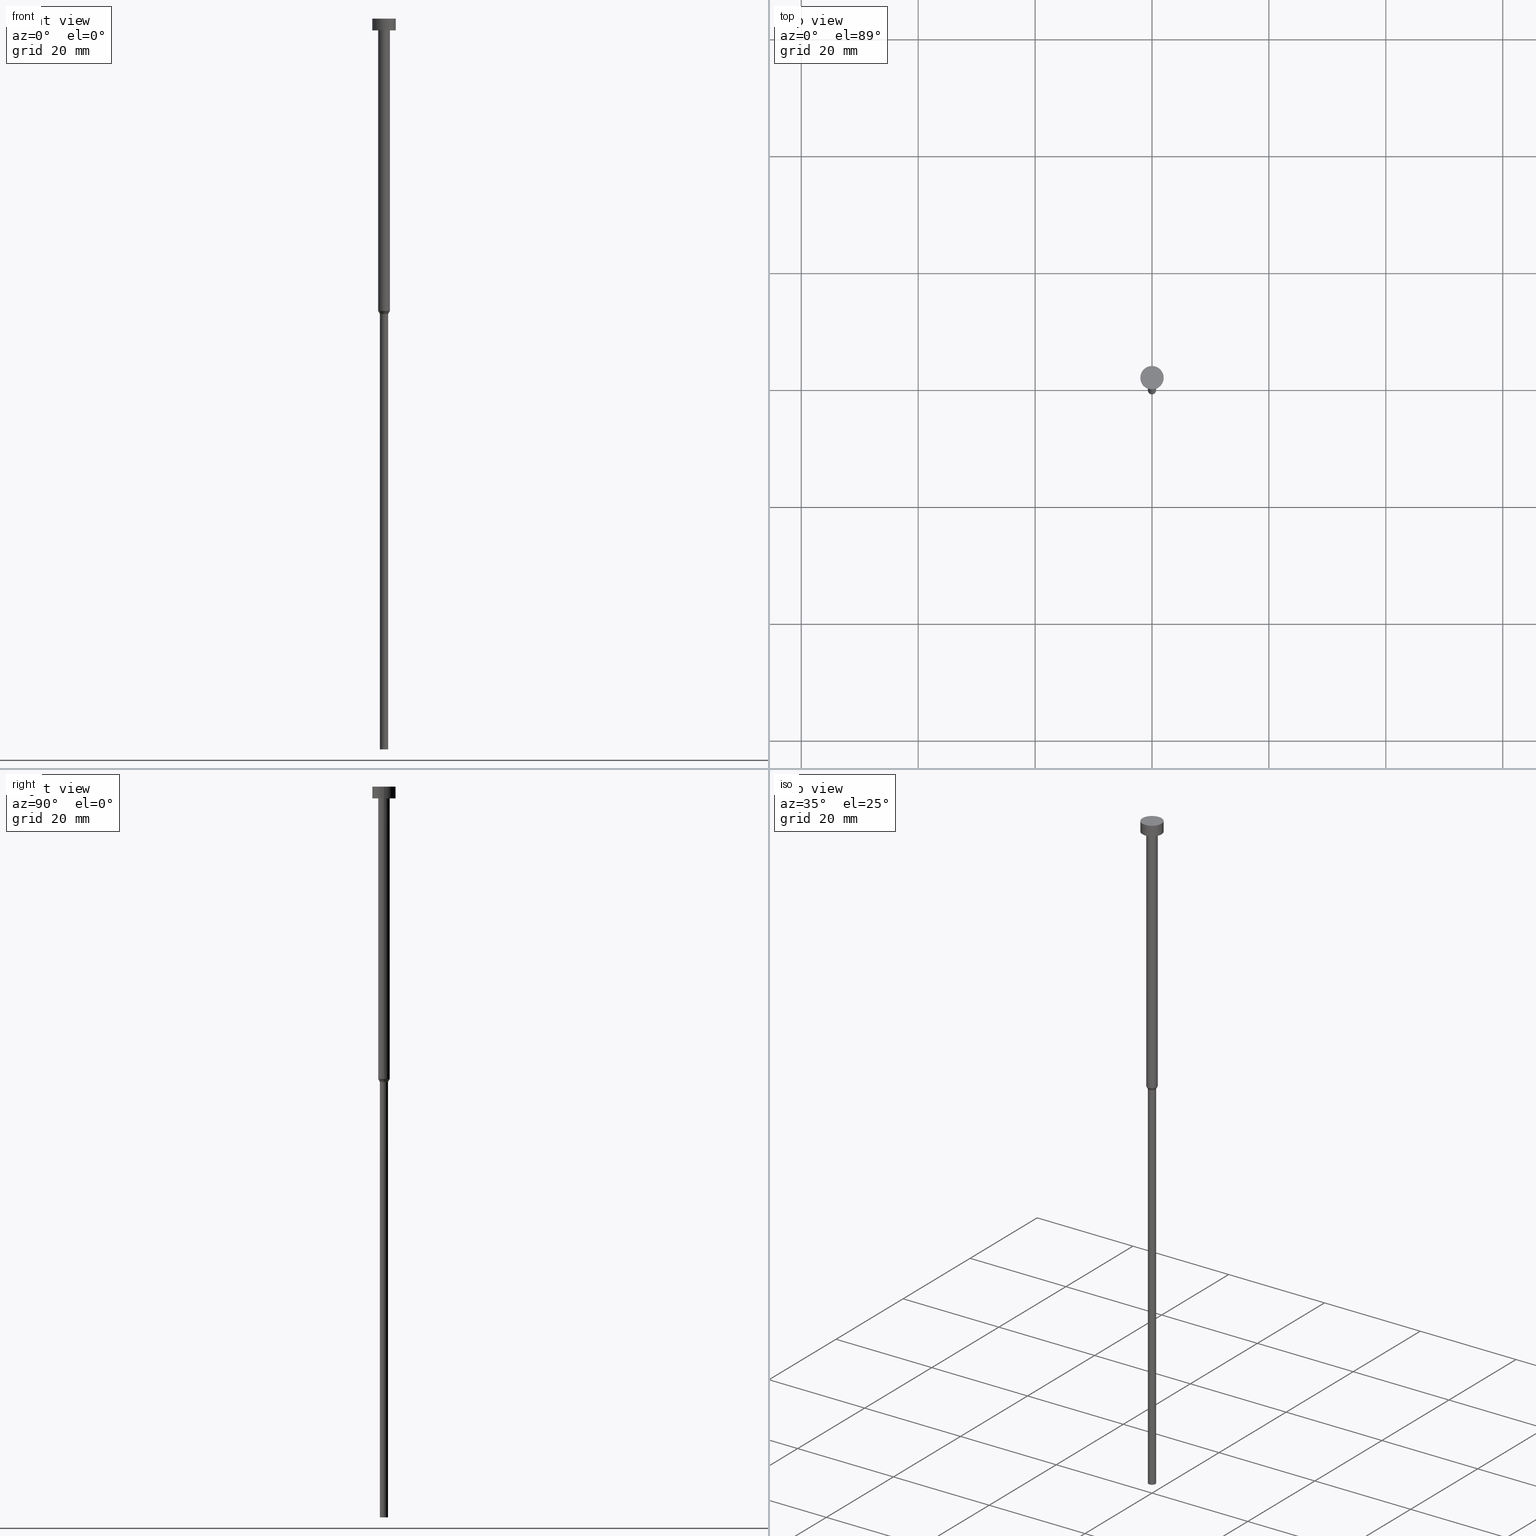
[diagram: canonical four-view strip — front | top / right | iso, engineering-drawing reading convention]
A machine part, canonical four-view strip (front | top / right | iso — engineering-drawing reading convention). The complete STEP part file that produces these views, byte-faithful:
ISO-10303-21;
HEADER;
FILE_DESCRIPTION (( 'STEP AP203' ),
    '1' );
FILE_NAME ('835c.STEP',
    '2023-02-13T11:52:17',
    ( '' ),
    ( '' ),
    'SwSTEP 2.0',
    'SolidWorks 2019',
    '' );
FILE_SCHEMA (( 'CONFIG_CONTROL_DESIGN' ));
ENDSEC;

DATA;
#1 = APPROVAL_STATUS ( 'not_yet_approved' ) ;
#2 = CARTESIAN_POINT ( 'NONE',  ( 2.000000000000000000, 0.000000000000000000, 0.000000000000000000 ) ) ;
#3 = CC_DESIGN_PERSON_AND_ORGANIZATION_ASSIGNMENT ( #331, #4, ( #202 ) ) ;
#4 = PERSON_AND_ORGANIZATION_ROLE ( 'design_supplier' ) ;
#5 = AXIS2_PLACEMENT_3D ( 'NONE', #204, #70, #95 ) ;
#6 = SECURITY_CLASSIFICATION ( '', '', #353 ) ;
#7 = CARTESIAN_POINT ( 'NONE',  ( 0.000000000000000000, 0.000000000000000000, -125.0000000000000000 ) ) ;
#8 = DIRECTION ( 'NONE',  ( -0.000000000000000000, -0.000000000000000000, 1.000000000000000000 ) ) ;
#9 = DIRECTION ( 'NONE',  ( 1.000000000000000000, 0.000000000000000000, 0.000000000000000000 ) ) ;
#10 = CARTESIAN_POINT ( 'NONE',  ( -0.6999999999999999556, 8.572527594031473190E-17, -50.51961524227067457 ) ) ;
#11 = CYLINDRICAL_SURFACE ( 'NONE', #223, 0.6999999999999998446 ) ;
#12 = VECTOR ( 'NONE', #149, 1000.000000000000000 ) ;
#13 = AXIS2_PLACEMENT_3D ( 'NONE', #66, #174, #280 ) ;
#14 = CARTESIAN_POINT ( 'NONE',  ( 0.000000000000000000, 0.000000000000000000, -2.449293598294705921E-16 ) ) ;
#15 = EDGE_CURVE ( 'NONE', #268, #138, #60, .T. ) ;
#16 = ORIENTED_EDGE ( 'NONE', *, *, #32, .T. ) ;
#17 = FACE_OUTER_BOUND ( 'NONE', #36, .T. ) ;
#18 = VERTEX_POINT ( 'NONE', #93 ) ;
#19 = DIRECTION ( 'NONE',  ( -0.000000000000000000, -0.000000000000000000, 1.000000000000000000 ) ) ;
#20 = VERTEX_POINT ( 'NONE', #312 ) ;
#21 = VECTOR ( 'NONE', #19, 1000.000000000000000 ) ;
#22 = ORIENTED_EDGE ( 'NONE', *, *, #148, .T. ) ;
#23 = ORIENTED_EDGE ( 'NONE', *, *, #81, .T. ) ;
#24 = PERSON_AND_ORGANIZATION ( #78, #231 ) ;
#25 = CARTESIAN_POINT ( 'NONE',  ( 1.000000000000003109, 0.000000000000000000, -50.00000000000000000 ) ) ;
#26 = ORIENTED_EDGE ( 'NONE', *, *, #321, .T. ) ;
#27 = CALENDAR_DATE ( 2023, 13, 2 ) ;
#28 = DIRECTION ( 'NONE',  ( -0.000000000000000000, -0.000000000000000000, 1.000000000000000000 ) ) ;
#29 = CIRCLE ( 'NONE', #333, 2.000000000000000000 ) ;
#30 = ORIENTED_EDGE ( 'NONE', *, *, #167, .T. ) ;
#31 =( NAMED_UNIT ( * ) SI_UNIT ( $, .STERADIAN. ) SOLID_ANGLE_UNIT ( ) );
#32 = EDGE_CURVE ( 'NONE', #90, #207, #38, .T. ) ;
#33 = FACE_OUTER_BOUND ( 'NONE', #104, .T. ) ;
#34 = PERSON_AND_ORGANIZATION ( #78, #231 ) ;
#35 = CARTESIAN_POINT ( 'NONE',  ( 0.000000000000000000, 0.000000000000000000, 0.000000000000000000 ) ) ;
#36 = EDGE_LOOP ( 'NONE', ( #212, #271 ) ) ;
#37 = PERSON_AND_ORGANIZATION_ROLE ( 'creator' ) ;
#38 = CIRCLE ( 'NONE', #281, 1.000000000000003553 ) ;
#39 = CARTESIAN_POINT ( 'NONE',  ( 0.000000000000000000, 0.000000000000000000, -2.000000000000000444 ) ) ;
#40 = CC_DESIGN_PERSON_AND_ORGANIZATION_ASSIGNMENT ( #24, #193, ( #202 ) ) ;
#41 = CYLINDRICAL_SURFACE ( 'NONE', #319, 1.000000000000003331 ) ;
#42 = DIRECTION ( 'NONE',  ( -0.000000000000000000, -0.000000000000000000, 1.000000000000000000 ) ) ;
#43 = FACE_OUTER_BOUND ( 'NONE', #291, .T. ) ;
#44 = CYLINDRICAL_SURFACE ( 'NONE', #5, 2.000000000000000000 ) ;
#45 = DIRECTION ( 'NONE',  ( 1.000000000000000000, 0.000000000000000000, 0.000000000000000000 ) ) ;
#46 = ADVANCED_BREP_SHAPE_REPRESENTATION ( '835c', ( #237, #89 ), #47 ) ;
#47 =( GEOMETRIC_REPRESENTATION_CONTEXT ( 3 ) GLOBAL_UNCERTAINTY_ASSIGNED_CONTEXT ( ( #152 ) ) GLOBAL_UNIT_ASSIGNED_CONTEXT ( ( #257, #120, #31 ) ) REPRESENTATION_CONTEXT ( 'NONE', 'WORKASPACE' ) );
#48 = ADVANCED_FACE ( 'NONE', ( #98 ), #11, .T. ) ;
#49 = DIRECTION ( 'NONE',  ( -0.000000000000000000, -0.000000000000000000, 1.000000000000000000 ) ) ;
#50 = LINE ( 'NONE', #184, #21 ) ;
#51 = EDGE_CURVE ( 'NONE', #183, #161, #151, .T. ) ;
#52 = ORIENTED_EDGE ( 'NONE', *, *, #259, .T. ) ;
#53 = ORIENTED_EDGE ( 'NONE', *, *, #253, .F. ) ;
#54 = AXIS2_PLACEMENT_3D ( 'NONE', #117, #175, #286 ) ;
#55 = CALENDAR_DATE ( 2023, 13, 2 ) ;
#56 = APPLICATION_PROTOCOL_DEFINITION ( 'international standard', 'config_control_design', 1994, #105 ) ;
#57 = LINE ( 'NONE', #2, #96 ) ;
#58 = ORIENTED_EDGE ( 'NONE', *, *, #103, .F. ) ;
#59 = APPROVAL ( #1, 'NEUR�EN�' ) ;
#60 = LINE ( 'NONE', #177, #158 ) ;
#61 = PLANE ( 'NONE',  #71 ) ;
#62 = PRODUCT ( '835c', '835c', '', ( #277 ) ) ;
#63 = APPROVAL_ROLE ( '' ) ;
#64 = EDGE_CURVE ( 'NONE', #344, #161, #94, .T. ) ;
#65 = CARTESIAN_POINT ( 'NONE',  ( 0.000000000000000000, 0.000000000000000000, -2.000000000000000444 ) ) ;
#66 = CARTESIAN_POINT ( 'NONE',  ( 0.000000000000000000, 0.000000000000000000, 0.000000000000000000 ) ) ;
#67 = LOCAL_TIME ( 12, 52, 17.00000000000000000, #200 ) ;
#68 = DIRECTION ( 'NONE',  ( 1.000000000000000000, 0.000000000000000000, 0.000000000000000000 ) ) ;
#69 = DIRECTION ( 'NONE',  ( -0.000000000000000000, -0.000000000000000000, 1.000000000000000000 ) ) ;
#70 = DIRECTION ( 'NONE',  ( -0.000000000000000000, -0.000000000000000000, 1.000000000000000000 ) ) ;
#71 = AXIS2_PLACEMENT_3D ( 'NONE', #172, #92, #306 ) ;
#72 = PRODUCT_RELATED_PRODUCT_CATEGORY ( 'detail', '', ( #62 ) ) ;
#73 = DIRECTION ( 'NONE',  ( -0.4999999999999990008, 6.123233995736753710E-17, 0.8660254037844392627 ) ) ;
#74 = ORIENTED_EDGE ( 'NONE', *, *, #259, .F. ) ;
#75 = CARTESIAN_POINT ( 'NONE',  ( 0.000000000000000000, 0.000000000000000000, -50.00000000000000000 ) ) ;
#76 = CIRCLE ( 'NONE', #275, 0.6999999999999999556 ) ;
#77 = ORIENTED_EDGE ( 'NONE', *, *, #269, .T. ) ;
#78 = PERSON ( 'NEUR�EN�', 'NEUR�EN�', 'NEUR�EN�', ('NEUR�EN�'), ('NEUR�EN�'), ('NEUR�EN�') ) ;
#79 = CC_DESIGN_APPROVAL ( #162, ( #197 ) ) ;
#80 = ORIENTED_EDGE ( 'NONE', *, *, #15, .T. ) ;
#81 = EDGE_CURVE ( 'NONE', #161, #344, #76, .T. ) ;
#82 = VERTEX_POINT ( 'NONE', #156 ) ;
#83 = VECTOR ( 'NONE', #147, 1000.000000000000000 ) ;
#84 = PERSON_AND_ORGANIZATION ( #78, #231 ) ;
#85 = EDGE_CURVE ( 'NONE', #20, #183, #122, .T. ) ;
#86 = DATE_AND_TIME ( #55, #242 ) ;
#87 = PERSON_AND_ORGANIZATION ( #78, #231 ) ;
#88 = DIRECTION ( 'NONE',  ( -0.000000000000000000, -0.000000000000000000, 1.000000000000000000 ) ) ;
#89 = AXIS2_PLACEMENT_3D ( 'NONE', #191, #300, #304 ) ;
#90 = VERTEX_POINT ( 'NONE', #339 ) ;
#91 = PERSON_AND_ORGANIZATION ( #78, #231 ) ;
#92 = DIRECTION ( 'NONE',  ( 0.000000000000000000, 0.000000000000000000, -1.000000000000000000 ) ) ;
#93 = CARTESIAN_POINT ( 'NONE',  ( -1.000000000000003109, 1.224646799147356905E-16, -50.00000000000000000 ) ) ;
#94 = CIRCLE ( 'NONE', #230, 0.6999999999999999556 ) ;
#95 = DIRECTION ( 'NONE',  ( 1.000000000000000000, 0.000000000000000000, 0.000000000000000000 ) ) ;
#96 = VECTOR ( 'NONE', #115, 1000.000000000000000 ) ;
#97 = CARTESIAN_POINT ( 'NONE',  ( 0.000000000000000000, 0.000000000000000000, 0.000000000000000000 ) ) ;
#98 = FACE_OUTER_BOUND ( 'NONE', #101, .T. ) ;
#99 = CC_DESIGN_APPROVAL ( #285, ( #6 ) ) ;
#100 = ORIENTED_EDGE ( 'NONE', *, *, #155, .F. ) ;
#101 = EDGE_LOOP ( 'NONE', ( #350, #30, #327, #323 ) ) ;
#102 = CIRCLE ( 'NONE', #137, 1.000000000000003109 ) ;
#103 = EDGE_CURVE ( 'NONE', #240, #138, #313, .T. ) ;
#104 = EDGE_LOOP ( 'NONE', ( #23, #236, #222, #143 ) ) ;
#105 = APPLICATION_CONTEXT ( 'configuration controlled 3d designs of mechanical parts and assemblies' ) ;
#106 = CARTESIAN_POINT ( 'NONE',  ( 2.000000000000000000, 0.000000000000000000, -2.449293598294705921E-16 ) ) ;
#107 = EDGE_LOOP ( 'NONE', ( #16, #22 ) ) ;
#108 = PERSON_AND_ORGANIZATION ( #78, #231 ) ;
#109 = CYLINDRICAL_SURFACE ( 'NONE', #347, 2.000000000000000000 ) ;
#110 = DATE_TIME_ROLE ( 'classification_date' ) ;
#111 = EDGE_CURVE ( 'NONE', #82, #18, #332, .T. ) ;
#112 = CIRCLE ( 'NONE', #264, 2.000000000000000000 ) ;
#113 = FACE_OUTER_BOUND ( 'NONE', #267, .T. ) ;
#114 = DATE_AND_TIME ( #144, #67 ) ;
#115 = DIRECTION ( 'NONE',  ( -0.000000000000000000, -0.000000000000000000, 1.000000000000000000 ) ) ;
#116 = PERSON_AND_ORGANIZATION_ROLE ( 'classification_officer' ) ;
#117 = CARTESIAN_POINT ( 'NONE',  ( 0.000000000000000000, 0.000000000000000000, 0.000000000000000000 ) ) ;
#118 = CIRCLE ( 'NONE', #153, 0.6999999999999998446 ) ;
#119 = CARTESIAN_POINT ( 'NONE',  ( 0.000000000000000000, 0.000000000000000000, 0.000000000000000000 ) ) ;
#120 =( NAMED_UNIT ( * ) PLANE_ANGLE_UNIT ( ) SI_UNIT ( $, .RADIAN. ) );
#121 = DIRECTION ( 'NONE',  ( 1.000000000000000000, 0.000000000000000000, 0.000000000000000000 ) ) ;
#122 = CIRCLE ( 'NONE', #241, 0.6999999999999998446 ) ;
#123 = ADVANCED_FACE ( 'NONE', ( #234 ), #44, .T. ) ;
#124 = CARTESIAN_POINT ( 'NONE',  ( 0.000000000000000000, 0.000000000000000000, -125.0000000000000000 ) ) ;
#125 = AXIS2_PLACEMENT_3D ( 'NONE', #211, #320, #294 ) ;
#126 = CARTESIAN_POINT ( 'NONE',  ( 0.000000000000000000, 0.000000000000000000, -50.51961524227067457 ) ) ;
#127 = EDGE_CURVE ( 'NONE', #82, #90, #309, .T. ) ;
#128 = CLOSED_SHELL ( 'NONE', ( #208, #134, #205, #48, #345, #338, #226, #334, #314, #123, #185 ) ) ;
#129 = ORIENTED_EDGE ( 'NONE', *, *, #64, .T. ) ;
#130 = CONICAL_SURFACE ( 'NONE', #326, 1.000000000000003109, 0.5235987755982977054 ) ;
#131 = DIRECTION ( 'NONE',  ( 1.000000000000000000, 0.000000000000000000, 0.000000000000000000 ) ) ;
#132 = ORIENTED_EDGE ( 'NONE', *, *, #305, .F. ) ;
#133 = EDGE_LOOP ( 'NONE', ( #52, #80, #58, #53 ) ) ;
#134 = ADVANCED_FACE ( 'NONE', ( #203 ), #307, .T. ) ;
#135 = AXIS2_PLACEMENT_3D ( 'NONE', #14, #228, #68 ) ;
#136 = ORIENTED_EDGE ( 'NONE', *, *, #15, .F. ) ;
#137 = AXIS2_PLACEMENT_3D ( 'NONE', #75, #325, #274 ) ;
#138 = VERTEX_POINT ( 'NONE', #315 ) ;
#139 = DIRECTION ( 'NONE',  ( 1.000000000000000000, 0.000000000000000000, 0.000000000000000000 ) ) ;
#140 = CC_DESIGN_DATE_AND_TIME_ASSIGNMENT ( #250, #146, ( #197 ) ) ;
#141 = PERSON_AND_ORGANIZATION ( #78, #231 ) ;
#142 = DIRECTION ( 'NONE',  ( 0.4999999999999990008, 0.000000000000000000, 0.8660254037844392627 ) ) ;
#143 = ORIENTED_EDGE ( 'NONE', *, *, #262, .F. ) ;
#144 = CALENDAR_DATE ( 2023, 13, 2 ) ;
#145 = LINE ( 'NONE', #246, #83 ) ;
#146 = DATE_TIME_ROLE ( 'creation_date' ) ;
#147 = DIRECTION ( 'NONE',  ( -0.000000000000000000, -0.000000000000000000, 1.000000000000000000 ) ) ;
#148 = EDGE_CURVE ( 'NONE', #207, #90, #176, .T. ) ;
#149 = DIRECTION ( 'NONE',  ( -0.000000000000000000, -0.000000000000000000, 1.000000000000000000 ) ) ;
#150 = DIRECTION ( 'NONE',  ( 1.000000000000000000, 0.000000000000000000, 0.000000000000000000 ) ) ;
#151 = LINE ( 'NONE', #258, #12 ) ;
#152 = UNCERTAINTY_MEASURE_WITH_UNIT (LENGTH_MEASURE( 1.000000000000000082E-05 ), #257, 'distance_accuracy_value', 'NONE');
#153 = AXIS2_PLACEMENT_3D ( 'NONE', #249, #88, #251 ) ;
#154 = AXIS2_PLACEMENT_3D ( 'NONE', #348, #292, #131 ) ;
#155 = EDGE_CURVE ( 'NONE', #344, #18, #214, .T. ) ;
#156 = CARTESIAN_POINT ( 'NONE',  ( 1.000000000000003109, 0.000000000000000000, -50.00000000000000000 ) ) ;
#157 = ORIENTED_EDGE ( 'NONE', *, *, #64, .F. ) ;
#158 = VECTOR ( 'NONE', #8, 1000.000000000000000 ) ;
#159 = CARTESIAN_POINT ( 'NONE',  ( -1.000000000000003109, 1.224646799147356905E-16, -50.00000000000000000 ) ) ;
#160 = ORIENTED_EDGE ( 'NONE', *, *, #201, .T. ) ;
#161 = VERTEX_POINT ( 'NONE', #182 ) ;
#162 = APPROVAL ( #221, 'NEUR�EN�' ) ;
#163 = VECTOR ( 'NONE', #49, 1000.000000000000000 ) ;
#164 = ORIENTED_EDGE ( 'NONE', *, *, #167, .F. ) ;
#165 = CC_DESIGN_APPROVAL ( #59, ( #202 ) ) ;
#166 = DIRECTION ( 'NONE',  ( -0.000000000000000000, -0.000000000000000000, 1.000000000000000000 ) ) ;
#167 = EDGE_CURVE ( 'NONE', #20, #344, #50, .T. ) ;
#168 = APPROVAL_DATE_TIME ( #114, #59 ) ;
#169 = DIRECTION ( 'NONE',  ( 1.000000000000000000, 0.000000000000000000, 0.000000000000000000 ) ) ;
#170 = APPROVAL_ROLE ( '' ) ;
#171 = CARTESIAN_POINT ( 'NONE',  ( -2.000000000000000000, 2.449293598294706414E-16, -2.000000000000000444 ) ) ;
#172 = CARTESIAN_POINT ( 'NONE',  ( 0.000000000000000000, -2.000000000000000000, -2.000000000000000444 ) ) ;
#173 = DIRECTION ( 'NONE',  ( -0.000000000000000000, -0.000000000000000000, 1.000000000000000000 ) ) ;
#174 = DIRECTION ( 'NONE',  ( -0.000000000000000000, -0.000000000000000000, 1.000000000000000000 ) ) ;
#175 = DIRECTION ( 'NONE',  ( -0.000000000000000000, -0.000000000000000000, 1.000000000000000000 ) ) ;
#176 = CIRCLE ( 'NONE', #125, 1.000000000000003553 ) ;
#177 = CARTESIAN_POINT ( 'NONE',  ( -2.000000000000000000, 2.449293598294706414E-16, 0.000000000000000000 ) ) ;
#178 = DIRECTION ( 'NONE',  ( -0.000000000000000000, -0.000000000000000000, 1.000000000000000000 ) ) ;
#179 = AXIS2_PLACEMENT_3D ( 'NONE', #343, #337, #288 ) ;
#180 = LOCAL_TIME ( 12, 52, 17.00000000000000000, #255 ) ;
#181 = DIRECTION ( 'NONE',  ( -0.000000000000000000, -0.000000000000000000, 1.000000000000000000 ) ) ;
#182 = CARTESIAN_POINT ( 'NONE',  ( 0.6999999999999999556, 0.000000000000000000, -50.51961524227067457 ) ) ;
#183 = VERTEX_POINT ( 'NONE', #290 ) ;
#184 = CARTESIAN_POINT ( 'NONE',  ( -0.6999999999999998446, 8.572527594031470725E-17, 0.000000000000000000 ) ) ;
#185 = ADVANCED_FACE ( 'NONE', ( #17 ), #265, .T. ) ;
#186 = EDGE_LOOP ( 'NONE', ( #132, #245 ) ) ;
#187 = ORIENTED_EDGE ( 'NONE', *, *, #85, .T. ) ;
#188 = VERTEX_POINT ( 'NONE', #239 ) ;
#189 = EDGE_CURVE ( 'NONE', #138, #240, #29, .T. ) ;
#190 = VECTOR ( 'NONE', #142, 1000.000000000000000 ) ;
#191 = CARTESIAN_POINT ( 'NONE',  ( 0.000000000000000000, 0.000000000000000000, 0.000000000000000000 ) ) ;
#192 = DIRECTION ( 'NONE',  ( 1.000000000000000000, 0.000000000000000000, 0.000000000000000000 ) ) ;
#193 = PERSON_AND_ORGANIZATION_ROLE ( 'creator' ) ;
#194 = CARTESIAN_POINT ( 'NONE',  ( 0.000000000000000000, 0.000000000000000000, -50.00000000000000000 ) ) ;
#195 = COORDINATED_UNIVERSAL_TIME_OFFSET ( 1, 0, .AHEAD. ) ;
#196 = CARTESIAN_POINT ( 'NONE',  ( -1.000000000000003553, 1.224646799147357398E-16, -2.000000000000000444 ) ) ;
#197 = PRODUCT_DEFINITION ( 'NEZN�M�', '', #202, #229 ) ;
#198 = APPROVAL_DATE_TIME ( #335, #285 ) ;
#199 = FACE_OUTER_BOUND ( 'NONE', #346, .T. ) ;
#200 = COORDINATED_UNIVERSAL_TIME_OFFSET ( 1, 0, .AHEAD. ) ;
#201 = EDGE_CURVE ( 'NONE', #18, #82, #102, .T. ) ;
#202 = PRODUCT_DEFINITION_FORMATION_WITH_SPECIFIED_SOURCE ( 'LIBOVOLN�', '', #62, .NOT_KNOWN. ) ;
#203 = FACE_OUTER_BOUND ( 'NONE', #349, .T. ) ;
#204 = CARTESIAN_POINT ( 'NONE',  ( 0.000000000000000000, 0.000000000000000000, 0.000000000000000000 ) ) ;
#205 = ADVANCED_FACE ( 'NONE', ( #33 ), #130, .T. ) ;
#206 = LOCAL_TIME ( 12, 52, 17.00000000000000000, #273 ) ;
#207 = VERTEX_POINT ( 'NONE', #196 ) ;
#208 = ADVANCED_FACE ( 'NONE', ( #302 ), #109, .T. ) ;
#209 = DIRECTION ( 'NONE',  ( -0.000000000000000000, -0.000000000000000000, 1.000000000000000000 ) ) ;
#210 = ORIENTED_EDGE ( 'NONE', *, *, #269, .F. ) ;
#211 = CARTESIAN_POINT ( 'NONE',  ( 0.000000000000000000, 0.000000000000000000, -2.000000000000000444 ) ) ;
#212 = ORIENTED_EDGE ( 'NONE', *, *, #103, .T. ) ;
#213 = AXIS2_PLACEMENT_3D ( 'NONE', #352, #244, #139 ) ;
#214 = LINE ( 'NONE', #159, #303 ) ;
#215 = ORIENTED_EDGE ( 'NONE', *, *, #148, .F. ) ;
#216 = DIRECTION ( 'NONE',  ( 1.000000000000000000, 0.000000000000000000, 0.000000000000000000 ) ) ;
#217 = DATE_AND_TIME ( #27, #206 ) ;
#218 = DIRECTION ( 'NONE',  ( -0.000000000000000000, -0.000000000000000000, 1.000000000000000000 ) ) ;
#219 = LOCAL_TIME ( 12, 52, 17.00000000000000000, #224 ) ;
#220 = APPROVAL_DATE_TIME ( #86, #162 ) ;
#221 = APPROVAL_STATUS ( 'not_yet_approved' ) ;
#222 = ORIENTED_EDGE ( 'NONE', *, *, #111, .F. ) ;
#223 = AXIS2_PLACEMENT_3D ( 'NONE', #119, #42, #261 ) ;
#224 = COORDINATED_UNIVERSAL_TIME_OFFSET ( 1, 0, .AHEAD. ) ;
#225 = DIRECTION ( 'NONE',  ( 0.000000000000000000, 0.000000000000000000, -1.000000000000000000 ) ) ;
#226 = ADVANCED_FACE ( 'NONE', ( #113 ), #297, .T. ) ;
#227 = FACE_OUTER_BOUND ( 'NONE', #186, .T. ) ;
#228 = DIRECTION ( 'NONE',  ( -0.000000000000000000, -0.000000000000000000, 1.000000000000000000 ) ) ;
#229 = DESIGN_CONTEXT ( 'detailed design', #278, 'design' ) ;
#230 = AXIS2_PLACEMENT_3D ( 'NONE', #126, #287, #45 ) ;
#231 = ORGANIZATION ( 'NEUR�EN�', 'NEUR�EN�', '' ) ;
#232 = DIRECTION ( 'NONE',  ( -0.000000000000000000, -0.000000000000000000, 1.000000000000000000 ) ) ;
#233 = CC_DESIGN_PERSON_AND_ORGANIZATION_ASSIGNMENT ( #91, #37, ( #197 ) ) ;
#234 = FACE_OUTER_BOUND ( 'NONE', #296, .T. ) ;
#235 = CIRCLE ( 'NONE', #340, 2.000000000000000000 ) ;
#236 = ORIENTED_EDGE ( 'NONE', *, *, #155, .T. ) ;
#237 = MANIFOLD_SOLID_BREP ( 'Rotovat1', #128 ) ;
#238 = CC_DESIGN_PERSON_AND_ORGANIZATION_ASSIGNMENT ( #108, #116, ( #6 ) ) ;
#239 = CARTESIAN_POINT ( 'NONE',  ( 2.000000000000000000, 0.000000000000000000, -2.000000000000000444 ) ) ;
#240 = VERTEX_POINT ( 'NONE', #106 ) ;
#241 = AXIS2_PLACEMENT_3D ( 'NONE', #124, #232, #342 ) ;
#242 = LOCAL_TIME ( 12, 52, 17.00000000000000000, #195 ) ;
#243 = ORIENTED_EDGE ( 'NONE', *, *, #111, .T. ) ;
#244 = DIRECTION ( 'NONE',  ( -0.000000000000000000, -0.000000000000000000, 1.000000000000000000 ) ) ;
#245 = ORIENTED_EDGE ( 'NONE', *, *, #85, .F. ) ;
#246 = CARTESIAN_POINT ( 'NONE',  ( -1.000000000000003331, 1.224646799147357151E-16, 0.000000000000000000 ) ) ;
#247 = CC_DESIGN_SECURITY_CLASSIFICATION ( #6, ( #202 ) ) ;
#248 = APPROVAL_STATUS ( 'not_yet_approved' ) ;
#249 = CARTESIAN_POINT ( 'NONE',  ( 0.000000000000000000, 0.000000000000000000, -125.0000000000000000 ) ) ;
#250 = DATE_AND_TIME ( #252, #180 ) ;
#251 = DIRECTION ( 'NONE',  ( 1.000000000000000000, 0.000000000000000000, 0.000000000000000000 ) ) ;
#252 = CALENDAR_DATE ( 2023, 13, 2 ) ;
#253 = EDGE_CURVE ( 'NONE', #188, #240, #57, .T. ) ;
#254 = PRODUCT_DEFINITION_SHAPE ( 'NONE', 'NONE',  #197 ) ;
#255 = COORDINATED_UNIVERSAL_TIME_OFFSET ( 1, 0, .AHEAD. ) ;
#256 = APPROVAL_PERSON_ORGANIZATION ( #87, #285, #324 ) ;
#257 =( LENGTH_UNIT ( ) NAMED_UNIT ( * ) SI_UNIT ( .MILLI., .METRE. ) );
#258 = CARTESIAN_POINT ( 'NONE',  ( 0.6999999999999998446, 0.000000000000000000, 0.000000000000000000 ) ) ;
#259 = EDGE_CURVE ( 'NONE', #188, #268, #112, .T. ) ;
#260 = AXIS2_PLACEMENT_3D ( 'NONE', #7, #225, #336 ) ;
#261 = DIRECTION ( 'NONE',  ( 1.000000000000000000, 0.000000000000000000, 0.000000000000000000 ) ) ;
#262 = EDGE_CURVE ( 'NONE', #161, #82, #272, .T. ) ;
#263 = ORIENTED_EDGE ( 'NONE', *, *, #127, .T. ) ;
#264 = AXIS2_PLACEMENT_3D ( 'NONE', #299, #218, #169 ) ;
#265 = PLANE ( 'NONE',  #154 ) ;
#266 = ORIENTED_EDGE ( 'NONE', *, *, #201, .F. ) ;
#267 = EDGE_LOOP ( 'NONE', ( #100, #129, #289, #266 ) ) ;
#268 = VERTEX_POINT ( 'NONE', #171 ) ;
#269 = EDGE_CURVE ( 'NONE', #18, #207, #145, .T. ) ;
#270 = APPROVAL_PERSON_ORGANIZATION ( #84, #59, #170 ) ;
#271 = ORIENTED_EDGE ( 'NONE', *, *, #189, .T. ) ;
#272 = LINE ( 'NONE', #25, #190 ) ;
#273 = COORDINATED_UNIVERSAL_TIME_OFFSET ( 1, 0, .AHEAD. ) ;
#274 = DIRECTION ( 'NONE',  ( 1.000000000000000000, 0.000000000000000000, 0.000000000000000000 ) ) ;
#275 = AXIS2_PLACEMENT_3D ( 'NONE', #284, #181, #121 ) ;
#276 = CALENDAR_DATE ( 2023, 13, 2 ) ;
#277 = MECHANICAL_CONTEXT ( 'NONE', #105, 'mechanical' ) ;
#278 = APPLICATION_CONTEXT ( 'configuration controlled 3d designs of mechanical parts and assemblies' ) ;
#279 = FACE_OUTER_BOUND ( 'NONE', #322, .T. ) ;
#280 = DIRECTION ( 'NONE',  ( 1.000000000000000000, 0.000000000000000000, 0.000000000000000000 ) ) ;
#281 = AXIS2_PLACEMENT_3D ( 'NONE', #39, #69, #9 ) ;
#282 = APPROVAL_PERSON_ORGANIZATION ( #34, #162, #63 ) ;
#283 = PLANE ( 'NONE',  #260 ) ;
#284 = CARTESIAN_POINT ( 'NONE',  ( 0.000000000000000000, 0.000000000000000000, -50.51961524227067457 ) ) ;
#285 = APPROVAL ( #248, 'NEUR�EN�' ) ;
#286 = DIRECTION ( 'NONE',  ( 1.000000000000000000, 0.000000000000000000, 0.000000000000000000 ) ) ;
#287 = DIRECTION ( 'NONE',  ( -0.000000000000000000, -0.000000000000000000, 1.000000000000000000 ) ) ;
#288 = DIRECTION ( 'NONE',  ( 1.000000000000000000, 0.000000000000000000, 0.000000000000000000 ) ) ;
#289 = ORIENTED_EDGE ( 'NONE', *, *, #262, .T. ) ;
#290 = CARTESIAN_POINT ( 'NONE',  ( 0.6999999999999998446, 0.000000000000000000, -125.0000000000000000 ) ) ;
#291 = EDGE_LOOP ( 'NONE', ( #164, #187, #293, #157 ) ) ;
#292 = DIRECTION ( 'NONE',  ( 0.000000000000000000, -0.000000000000000000, 1.000000000000000000 ) ) ;
#293 = ORIENTED_EDGE ( 'NONE', *, *, #51, .T. ) ;
#294 = DIRECTION ( 'NONE',  ( 1.000000000000000000, 0.000000000000000000, 0.000000000000000000 ) ) ;
#295 = CARTESIAN_POINT ( 'NONE',  ( 0.000000000000000000, 0.000000000000000000, -2.449293598294705921E-16 ) ) ;
#296 = EDGE_LOOP ( 'NONE', ( #136, #26, #318, #316 ) ) ;
#297 = CONICAL_SURFACE ( 'NONE', #213, 1.000000000000003109, 0.5235987755982977054 ) ;
#298 = APPLICATION_PROTOCOL_DEFINITION ( 'international standard', 'config_control_design', 1994, #278 ) ;
#299 = CARTESIAN_POINT ( 'NONE',  ( 0.000000000000000000, 0.000000000000000000, -2.000000000000000444 ) ) ;
#300 = DIRECTION ( 'NONE',  ( 0.000000000000000000, 0.000000000000000000, 1.000000000000000000 ) ) ;
#301 = SHAPE_DEFINITION_REPRESENTATION ( #254, #46 ) ;
#302 = FACE_OUTER_BOUND ( 'NONE', #133, .T. ) ;
#303 = VECTOR ( 'NONE', #73, 1000.000000000000000 ) ;
#304 = DIRECTION ( 'NONE',  ( 1.000000000000000000, 0.000000000000000000, 0.000000000000000000 ) ) ;
#305 = EDGE_CURVE ( 'NONE', #183, #20, #118, .T. ) ;
#306 = DIRECTION ( 'NONE',  ( -1.000000000000000000, 0.000000000000000000, -0.000000000000000000 ) ) ;
#307 = CYLINDRICAL_SURFACE ( 'NONE', #13, 1.000000000000003331 ) ;
#308 = CYLINDRICAL_SURFACE ( 'NONE', #54, 0.6999999999999998446 ) ;
#309 = LINE ( 'NONE', #310, #163 ) ;
#310 = CARTESIAN_POINT ( 'NONE',  ( 1.000000000000003331, 0.000000000000000000, 0.000000000000000000 ) ) ;
#311 = CC_DESIGN_DATE_AND_TIME_ASSIGNMENT ( #217, #110, ( #6 ) ) ;
#312 = CARTESIAN_POINT ( 'NONE',  ( -0.6999999999999998446, 8.572527594031470725E-17, -125.0000000000000000 ) ) ;
#313 = CIRCLE ( 'NONE', #135, 2.000000000000000000 ) ;
#314 = ADVANCED_FACE ( 'NONE', ( #354, #199 ), #61, .T. ) ;
#315 = CARTESIAN_POINT ( 'NONE',  ( -2.000000000000000000, 2.449293598294706414E-16, -2.449293598294705921E-16 ) ) ;
#316 = ORIENTED_EDGE ( 'NONE', *, *, #189, .F. ) ;
#317 = DIRECTION ( 'NONE',  ( 1.000000000000000000, 0.000000000000000000, 0.000000000000000000 ) ) ;
#318 = ORIENTED_EDGE ( 'NONE', *, *, #253, .T. ) ;
#319 = AXIS2_PLACEMENT_3D ( 'NONE', #97, #178, #150 ) ;
#320 = DIRECTION ( 'NONE',  ( -0.000000000000000000, -0.000000000000000000, 1.000000000000000000 ) ) ;
#321 = EDGE_CURVE ( 'NONE', #268, #188, #235, .T. ) ;
#322 = EDGE_LOOP ( 'NONE', ( #210, #160, #263, #215 ) ) ;
#323 = ORIENTED_EDGE ( 'NONE', *, *, #51, .F. ) ;
#324 = APPROVAL_ROLE ( '' ) ;
#325 = DIRECTION ( 'NONE',  ( -0.000000000000000000, -0.000000000000000000, 1.000000000000000000 ) ) ;
#326 = AXIS2_PLACEMENT_3D ( 'NONE', #194, #166, #216 ) ;
#327 = ORIENTED_EDGE ( 'NONE', *, *, #81, .F. ) ;
#328 = ORIENTED_EDGE ( 'NONE', *, *, #127, .F. ) ;
#329 = PERSON_AND_ORGANIZATION_ROLE ( 'design_owner' ) ;
#330 = ORIENTED_EDGE ( 'NONE', *, *, #32, .F. ) ;
#331 = PERSON_AND_ORGANIZATION ( #78, #231 ) ;
#332 = CIRCLE ( 'NONE', #179, 1.000000000000003109 ) ;
#333 = AXIS2_PLACEMENT_3D ( 'NONE', #295, #209, #317 ) ;
#334 = ADVANCED_FACE ( 'NONE', ( #279 ), #41, .T. ) ;
#335 = DATE_AND_TIME ( #276, #219 ) ;
#336 = DIRECTION ( 'NONE',  ( -1.000000000000000000, 0.000000000000000000, -0.000000000000000000 ) ) ;
#337 = DIRECTION ( 'NONE',  ( -0.000000000000000000, -0.000000000000000000, 1.000000000000000000 ) ) ;
#338 = ADVANCED_FACE ( 'NONE', ( #43 ), #308, .T. ) ;
#339 = CARTESIAN_POINT ( 'NONE',  ( 1.000000000000003553, 0.000000000000000000, -2.000000000000000444 ) ) ;
#340 = AXIS2_PLACEMENT_3D ( 'NONE', #65, #173, #341 ) ;
#341 = DIRECTION ( 'NONE',  ( 1.000000000000000000, 0.000000000000000000, 0.000000000000000000 ) ) ;
#342 = DIRECTION ( 'NONE',  ( 1.000000000000000000, 0.000000000000000000, 0.000000000000000000 ) ) ;
#343 = CARTESIAN_POINT ( 'NONE',  ( 0.000000000000000000, 0.000000000000000000, -50.00000000000000000 ) ) ;
#344 = VERTEX_POINT ( 'NONE', #10 ) ;
#345 = ADVANCED_FACE ( 'NONE', ( #227 ), #283, .T. ) ;
#346 = EDGE_LOOP ( 'NONE', ( #74, #355 ) ) ;
#347 = AXIS2_PLACEMENT_3D ( 'NONE', #35, #28, #192 ) ;
#348 = CARTESIAN_POINT ( 'NONE',  ( 0.000000000000000000, 0.000000000000000000, -1.224646799147352961E-16 ) ) ;
#349 = EDGE_LOOP ( 'NONE', ( #243, #77, #330, #328 ) ) ;
#350 = ORIENTED_EDGE ( 'NONE', *, *, #305, .T. ) ;
#351 = CC_DESIGN_PERSON_AND_ORGANIZATION_ASSIGNMENT ( #141, #329, ( #62 ) ) ;
#352 = CARTESIAN_POINT ( 'NONE',  ( 0.000000000000000000, 0.000000000000000000, -50.00000000000000000 ) ) ;
#353 = SECURITY_CLASSIFICATION_LEVEL ( 'unclassified' ) ;
#354 = FACE_BOUND ( 'NONE', #107, .T. ) ;
#355 = ORIENTED_EDGE ( 'NONE', *, *, #321, .F. ) ;
ENDSEC;
END-ISO-10303-21;
